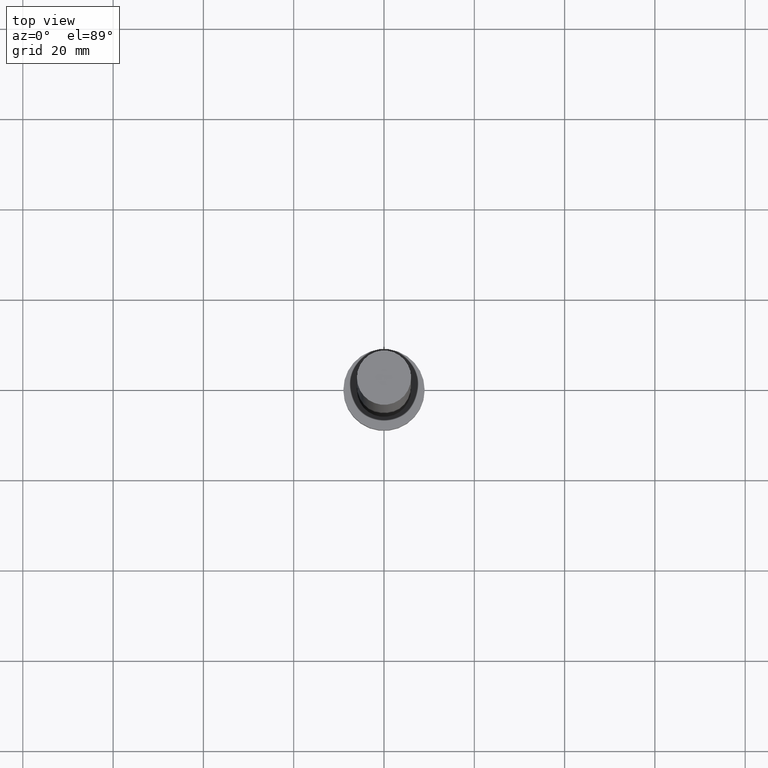
[diagram: clean part render]
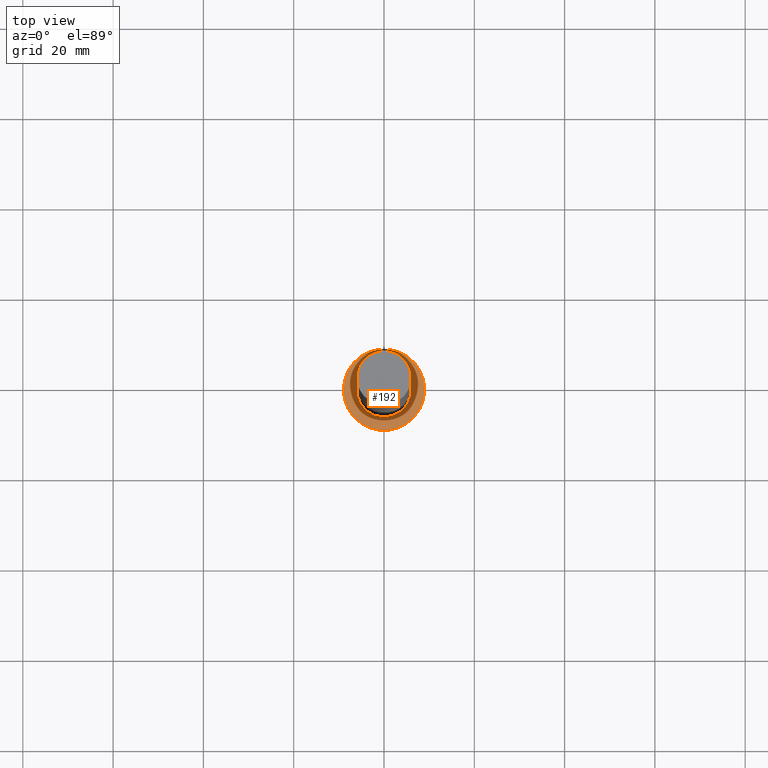
[diagram: same view with one face highlighted and labeled with its STEP entity id]
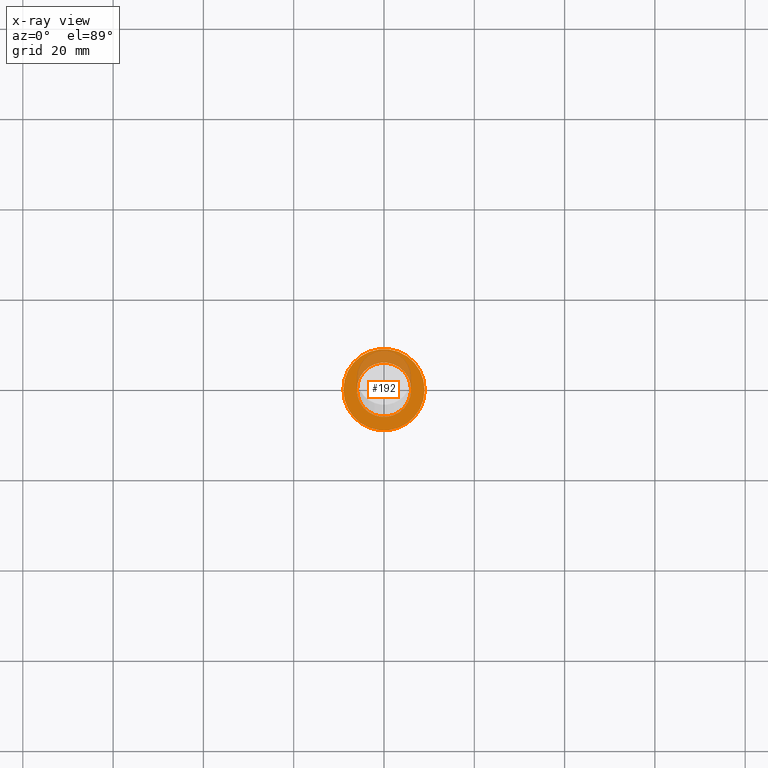
[diagram: x-ray of the same camera — body ghosted, the highlighted face saturated]
A machine part, top view. The second image highlights one B-rep face of the part: STEP entity #192.
The next image is the same camera in x-ray: the body ghosted, the highlighted face saturated — about 23% of this face is hidden behind the body in this view.
In plain terms, the highlighted planar face has unit normal (0, 0, 1).
Its self-contained STEP definition (entity closure, byte-faithful):
#6 = FACE_BOUND ( 'NONE', #249, .T. ) ;
#9 = CARTESIAN_POINT ( 'NONE',  ( 0.000000000000000000, 0.000000000000000000, 7.000000000000000000 ) ) ;
#11 = CARTESIAN_POINT ( 'NONE',  ( 9.000000000000000000, 1.102182119232617714E-15, 7.000000000000000000 ) ) ;
#14 = DIRECTION ( 'NONE',  ( 1.000000000000000000, 0.000000000000000000, 0.000000000000000000 ) ) ;
#18 = DIRECTION ( 'NONE',  ( 1.000000000000000000, 0.000000000000000000, 0.000000000000000000 ) ) ;
#25 = CARTESIAN_POINT ( 'NONE',  ( 0.000000000000000000, 0.000000000000000000, 7.000000000000000000 ) ) ;
#31 = DIRECTION ( 'NONE',  ( 0.000000000000000000, 0.000000000000000000, 1.000000000000000000 ) ) ;
#34 = ORIENTED_EDGE ( 'NONE', *, *, #219, .T. ) ;
#44 = ORIENTED_EDGE ( 'NONE', *, *, #204, .T. ) ;
#55 = VERTEX_POINT ( 'NONE', #213 ) ;
#60 = CARTESIAN_POINT ( 'NONE',  ( 0.000000000000000000, 0.000000000000000000, 7.000000000000000000 ) ) ;
#61 = EDGE_CURVE ( 'NONE', #139, #55, #85, .T. ) ;
#62 = AXIS2_PLACEMENT_3D ( 'NONE', #101, #31, #18 ) ;
#64 = DIRECTION ( 'NONE',  ( 1.000000000000000000, 0.000000000000000000, 0.000000000000000000 ) ) ;
#80 = AXIS2_PLACEMENT_3D ( 'NONE', #190, #188, #14 ) ;
#82 = DIRECTION ( 'NONE',  ( 1.000000000000000000, 0.000000000000000000, -0.000000000000000000 ) ) ;
#85 = CIRCLE ( 'NONE', #62, 6.000000000000000888 ) ;
#90 = ORIENTED_EDGE ( 'NONE', *, *, #61, .F. ) ;
#96 = EDGE_CURVE ( 'NONE', #55, #139, #216, .T. ) ;
#99 = PLANE ( 'NONE',  #172 ) ;
#101 = CARTESIAN_POINT ( 'NONE',  ( 0.000000000000000000, 0.000000000000000000, 7.000000000000000000 ) ) ;
#104 = VERTEX_POINT ( 'NONE', #227 ) ;
#118 = CIRCLE ( 'NONE', #217, 9.000000000000000000 ) ;
#139 = VERTEX_POINT ( 'NONE', #193 ) ;
#163 = DIRECTION ( 'NONE',  ( 0.000000000000000000, 0.000000000000000000, 1.000000000000000000 ) ) ;
#165 = DIRECTION ( 'NONE',  ( 1.000000000000000000, 0.000000000000000000, 0.000000000000000000 ) ) ;
#168 = EDGE_LOOP ( 'NONE', ( #44, #34 ) ) ;
#172 = AXIS2_PLACEMENT_3D ( 'NONE', #9, #223, #82 ) ;
#186 = DIRECTION ( 'NONE',  ( 0.000000000000000000, 0.000000000000000000, 1.000000000000000000 ) ) ;
#188 = DIRECTION ( 'NONE',  ( 0.000000000000000000, 0.000000000000000000, 1.000000000000000000 ) ) ;
#190 = CARTESIAN_POINT ( 'NONE',  ( 0.000000000000000000, 0.000000000000000000, 7.000000000000000000 ) ) ;
#191 = VERTEX_POINT ( 'NONE', #11 ) ;
#192 = ADVANCED_FACE ( 'NONE', ( #6, #241 ), #99, .T. ) ;
#193 = CARTESIAN_POINT ( 'NONE',  ( 6.000000000000000888, 7.347880794884120722E-16, 7.000000000000000000 ) ) ;
#199 = CIRCLE ( 'NONE', #248, 9.000000000000000000 ) ;
#204 = EDGE_CURVE ( 'NONE', #104, #191, #199, .T. ) ;
#213 = CARTESIAN_POINT ( 'NONE',  ( -6.000000000000000888, 0.000000000000000000, 7.000000000000000000 ) ) ;
#216 = CIRCLE ( 'NONE', #80, 6.000000000000000888 ) ;
#217 = AXIS2_PLACEMENT_3D ( 'NONE', #25, #186, #165 ) ;
#219 = EDGE_CURVE ( 'NONE', #191, #104, #118, .T. ) ;
#220 = ORIENTED_EDGE ( 'NONE', *, *, #96, .F. ) ;
#223 = DIRECTION ( 'NONE',  ( 0.000000000000000000, 0.000000000000000000, 1.000000000000000000 ) ) ;
#227 = CARTESIAN_POINT ( 'NONE',  ( -9.000000000000000000, 0.000000000000000000, 7.000000000000000000 ) ) ;
#241 = FACE_OUTER_BOUND ( 'NONE', #168, .T. ) ;
#248 = AXIS2_PLACEMENT_3D ( 'NONE', #60, #163, #64 ) ;
#249 = EDGE_LOOP ( 'NONE', ( #220, #90 ) ) ;